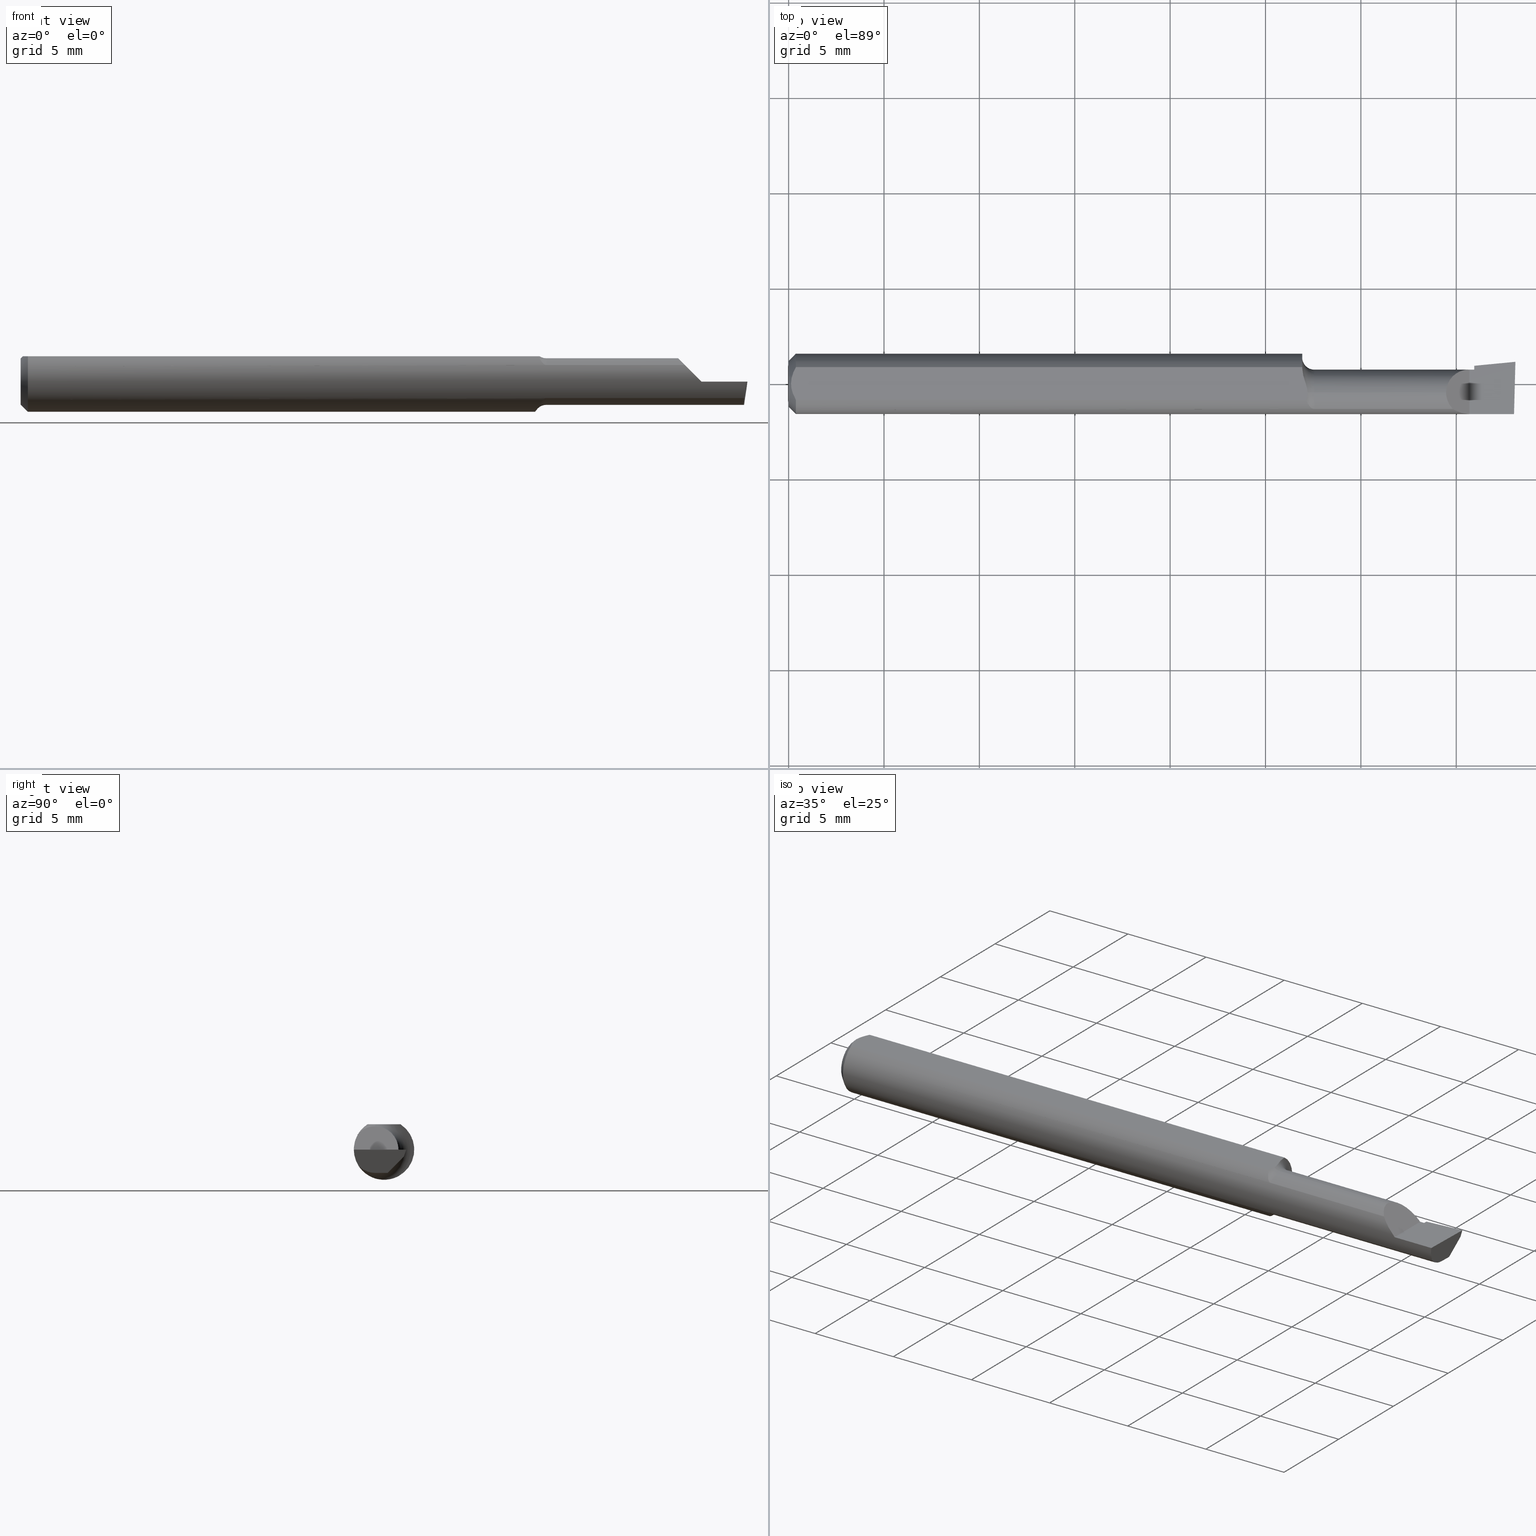
[diagram: canonical four-view strip — front | top / right | iso, engineering-drawing reading convention]
A machine part, canonical four-view strip (front | top / right | iso — engineering-drawing reading convention). The complete STEP part file that produces these views, byte-faithful:
ISO-10303-21;
HEADER;
FILE_DESCRIPTION (( 'STEP AP214' ),
    '1' );
FILE_NAME ('B110400.STEP',
    '2019-07-25T17:14:37',
    ( '' ),
    ( '' ),
    'SwSTEP 2.0',
    'SolidWorks 2018',
    '' );
FILE_SCHEMA (( 'AUTOMOTIVE_DESIGN' ));
ENDSEC;

DATA;
#1 = ORIENTED_EDGE ( 'NONE', *, *, #52, .F. ) ;
#2 = FACE_OUTER_BOUND ( 'NONE', #77, .T. ) ;
#3 = EDGE_CURVE ( 'NONE', #683, #197, #380, .T. ) ;
#4 = FILL_AREA_STYLE ('',( #547 ) ) ;
#5 = ORIENTED_EDGE ( 'NONE', *, *, #271, .T. ) ;
#6 =( NAMED_UNIT ( * ) SI_UNIT ( $, .STERADIAN. ) SOLID_ANGLE_UNIT ( ) );
#7 = CARTESIAN_POINT ( 'NONE',  ( 1.510364203804932526, 0.04234793331252790366, -0.01399999999999999856 ) ) ;
#8 = ORIENTED_EDGE ( 'NONE', *, *, #22, .T. ) ;
#9 = EDGE_CURVE ( 'NONE', #502, #662, #648, .T. ) ;
#10 = DIRECTION ( 'NONE',  ( -1.000000000000000000, -0.0000000000000000000, -0.0000000000000000000 ) ) ;
#11 = DIRECTION ( 'NONE',  ( -1.000000000000000000, 0.0000000000000000000, -0.0000000000000000000 ) ) ;
#12 = CIRCLE ( 'NONE', #675, 0.02500000000000000486 ) ;
#13 = CARTESIAN_POINT ( 'NONE',  ( 1.070168994702040521, -0.01001121285792181195, 0.05235000000000001458 ) ) ;
#14 = VECTOR ( 'NONE', #203, 39.37007874015748143 ) ;
#15 = ORIENTED_EDGE ( 'NONE', *, *, #163, .T. ) ;
#16 = ORIENTED_EDGE ( 'NONE', *, *, #526, .F. ) ;
#17 = EDGE_CURVE ( 'NONE', #39, #714, #247, .T. ) ;
#18 = PLANE ( 'NONE',  #703 ) ;
#19 = CARTESIAN_POINT ( 'NONE',  ( 1.070981797547136738, -0.01840000000000274055, 0.05235000000000000070 ) ) ;
#20 = CARTESIAN_POINT ( 'NONE',  ( 1.060000000000000275, 0.1123499999999999915, 0.05234999999999998682 ) ) ;
#21 = CARTESIAN_POINT ( 'NONE',  ( 0.01500000000000000465, 0.0000000000000000000, 0.0000000000000000000 ) ) ;
#22 = EDGE_CURVE ( 'NONE', #50, #696, #447, .T. ) ;
#23 = PRESENTATION_STYLE_ASSIGNMENT (( #491 ) ) ;
#24 = DIRECTION ( 'NONE',  ( 0.0000000000000000000, 1.000000000000000000, 0.0000000000000000000 ) ) ;
#25 = ORIENTED_EDGE ( 'NONE', *, *, #29, .T. ) ;
#26 = DIRECTION ( 'NONE',  ( 0.0000000000000000000, 0.0000000000000000000, -1.000000000000000000 ) ) ;
#27 = VERTEX_POINT ( 'NONE', #168 ) ;
#28 = VECTOR ( 'NONE', #249, 39.37007874015748854 ) ;
#29 = EDGE_CURVE ( 'NONE', #581, #601, #265, .T. ) ;
#30 = DIRECTION ( 'NONE',  ( -0.06894566448119622548, 0.7160281025913035613, -0.6946583704589933683 ) ) ;
#31 = ADVANCED_FACE ( 'NONE', ( #713 ), #286, .F. ) ;
#32 = PLANE ( 'NONE',  #560 ) ;
#33 = AXIS2_PLACEMENT_3D ( 'NONE', #615, #119, #57 ) ;
#34 = AXIS2_PLACEMENT_3D ( 'NONE', #579, #36, #189 ) ;
#35 = ORIENTED_EDGE ( 'NONE', *, *, #9, .F. ) ;
#36 = DIRECTION ( 'NONE',  ( -1.000000000000000000, -0.0000000000000000000, -0.0000000000000000000 ) ) ;
#37 = ORIENTED_EDGE ( 'NONE', *, *, #142, .F. ) ;
#38 = CARTESIAN_POINT ( 'NONE',  ( 1.062386060865227577, -0.01052139226165769992, -0.06200658662318050268 ) ) ;
#39 = VERTEX_POINT ( 'NONE', #439 ) ;
#40 = SURFACE_STYLE_FILL_AREA ( #309 ) ;
#41 = DIRECTION ( 'NONE',  ( 1.000000000000000000, 0.0000000000000000000, 0.0000000000000000000 ) ) ;
#42 = APPLICATION_CONTEXT ( 'automotive_design' ) ;
#43 = CARTESIAN_POINT ( 'NONE',  ( 1.500000000000000222, -0.2500000000000000555, 0.0000000000000000000 ) ) ;
#44 = LINE ( 'NONE', #7, #554 ) ;
#45 = AXIS2_PLACEMENT_3D ( 'NONE', #520, #587, #525 ) ;
#46 = CARTESIAN_POINT ( 'NONE',  ( 0.01500000000000000465, 0.03386738844375223462, 0.05234999999999997988 ) ) ;
#47 = ORIENTED_EDGE ( 'NONE', *, *, #669, .F. ) ;
#48 =( NAMED_UNIT ( * ) PLANE_ANGLE_UNIT ( ) SI_UNIT ( $, .RADIAN. ) );
#49 = LINE ( 'NONE', #634, #474 ) ;
#50 = VERTEX_POINT ( 'NONE', #338 ) ;
#51 = CARTESIAN_POINT ( 'NONE',  ( 1.067774730512700998, -0.03308328010062949742, -0.05299899880320897705 ) ) ;
#52 = EDGE_CURVE ( 'NONE', #27, #693, #44, .T. ) ;
#53 = ORIENTED_EDGE ( 'NONE', *, *, #536, .T. ) ;
#54 = CARTESIAN_POINT ( 'NONE',  ( 1.068925984400744600, -0.03134776909451144483, 0.05235000000000000070 ) ) ;
#55 = VECTOR ( 'NONE', #685, 39.37007874015748143 ) ;
#56 = AXIS2_PLACEMENT_3D ( 'NONE', #278, #378, #61 ) ;
#57 = DIRECTION ( 'NONE',  ( 0.0000000000000000000, 0.0000000000000000000, -1.000000000000000000 ) ) ;
#58 = ORIENTED_EDGE ( 'NONE', *, *, #224, .F. ) ;
#59 = VERTEX_POINT ( 'NONE', #179 ) ;
#60 = ORIENTED_EDGE ( 'NONE', *, *, #163, .F. ) ;
#61 = DIRECTION ( 'NONE',  ( 0.0000000000000000000, 0.0000000000000000000, -1.000000000000000000 ) ) ;
#62 = VERTEX_POINT ( 'NONE', #497 ) ;
#63 = CYLINDRICAL_SURFACE ( 'NONE', #524, 0.04804999999999998161 ) ;
#64 = DIRECTION ( 'NONE',  ( -0.0000000000000000000, 0.0000000000000000000, 1.000000000000000000 ) ) ;
#65 = CARTESIAN_POINT ( 'NONE',  ( 1.060000000000000275, 0.03254879782683783168, 0.05235000000000000070 ) ) ;
#66 = EDGE_CURVE ( 'NONE', #692, #151, #232, .T. ) ;
#67 = CARTESIAN_POINT ( 'NONE',  ( 1.060000000000000275, 0.03386738844375224156, 0.05235000000000000070 ) ) ;
#68 = DIRECTION ( 'NONE',  ( -0.0000000000000000000, 0.0000000000000000000, 1.000000000000000000 ) ) ;
#69 = FACE_OUTER_BOUND ( 'NONE', #420, .T. ) ;
#70 = AXIS2_PLACEMENT_3D ( 'NONE', #385, #118, #443 ) ;
#71 = CARTESIAN_POINT ( 'NONE',  ( 1.509953961983671489, 0.04660845752520201279, 0.0000000000000000000 ) ) ;
#72 = ORIENTED_EDGE ( 'NONE', *, *, #458, .T. ) ;
#73 = DIRECTION ( 'NONE',  ( 0.0000000000000000000, 1.000000000000000000, -7.598598113218357399E-17 ) ) ;
#74 =( BOUNDED_CURVE ( )  B_SPLINE_CURVE ( 3, ( #680, #553, #178, #448 ),
 .UNSPECIFIED., .F., .F. ) 
 B_SPLINE_CURVE_WITH_KNOTS ( ( 4, 4 ),
 ( 4.712388980384689674, 5.293951277779024522 ),
 .UNSPECIFIED. ) 
 CURVE ( )  GEOMETRIC_REPRESENTATION_ITEM ( )  RATIONAL_B_SPLINE_CURVE ( ( 1.000000000000000000, 0.9720134746468970244, 0.9720134746468970244, 1.000000000000000000 ) ) 
 REPRESENTATION_ITEM ( '' )  );
#75 = PLANE ( 'NONE',  #79 ) ;
#76 = CARTESIAN_POINT ( 'NONE',  ( 1.405000000000000249, 0.02964999999999991601, 1.163414459189982046E-17 ) ) ;
#77 = EDGE_LOOP ( 'NONE', ( #593, #253, #673, #427 ) ) ;
#78 = DIRECTION ( 'NONE',  ( 0.0000000000000000000, 0.0000000000000000000, -1.000000000000000000 ) ) ;
#79 = AXIS2_PLACEMENT_3D ( 'NONE', #453, #11, #68 ) ;
#80 = CARTESIAN_POINT ( 'NONE',  ( 1.493233423732482024, -0.05210000000000004211, -0.03425072991922938764 ) ) ;
#81 = ADVANCED_FACE ( 'NONE', ( #470 ), #676, .T. ) ;
#82 = DIRECTION ( 'NONE',  ( -1.000000000000000000, -0.0000000000000000000, -0.0000000000000000000 ) ) ;
#83 = CARTESIAN_POINT ( 'NONE',  ( 0.0000000000000000000, -0.01839999999999999969, 0.0000000000000000000 ) ) ;
#84 = AXIS2_PLACEMENT_3D ( 'NONE', #565, #238, #248 ) ;
#85 = DIRECTION ( 'NONE',  ( -0.7071067811865516806, 0.0000000000000000000, 0.7071067811865431318 ) ) ;
#86 = CARTESIAN_POINT ( 'NONE',  ( 0.01216137397042175820, -0.02864146636719541034, 0.05235000000000000070 ) ) ;
#87 = ORIENTED_EDGE ( 'NONE', *, *, #411, .T. ) ;
#88 = DIRECTION ( 'NONE',  ( 0.0000000000000000000, 0.0000000000000000000, 1.000000000000000000 ) ) ;
#89 = EDGE_CURVE ( 'NONE', #486, #416, #422, .T. ) ;
#90 = LINE ( 'NONE', #401, #209 ) ;
#91 = CARTESIAN_POINT ( 'NONE',  ( 1.060000000000000275, 0.03254879782683783168, 0.05235000000000000070 ) ) ;
#92 = ADVANCED_FACE ( 'NONE', ( #456 ), #75, .T. ) ;
#93 = CARTESIAN_POINT ( 'NONE',  ( 0.004999999999989931769, 7.898418181085889318E-16, 0.05235000000000000070 ) ) ;
#94 = PLANE ( 'NONE',  #45 ) ;
#95 = EDGE_CURVE ( 'NONE', #50, #392, #507, .T. ) ;
#96 = CIRCLE ( 'NONE', #329, 0.06235000000000000264 ) ;
#97 = CARTESIAN_POINT ( 'NONE',  ( 1.497171920470529161, -0.06235000000000005121, 3.552677088412731724E-19 ) ) ;
#98 = ORIENTED_EDGE ( 'NONE', *, *, #89, .F. ) ;
#99 = DIRECTION ( 'NONE',  ( -1.000000000000000000, 0.0000000000000000000, 1.224646799147350495E-16 ) ) ;
#100 = LINE ( 'NONE', #622, #572 ) ;
#101 = CARTESIAN_POINT ( 'NONE',  ( 1.085000000000000187, -0.01839999999999999969, 0.0000000000000000000 ) ) ;
#102 = DIRECTION ( 'NONE',  ( 0.0000000000000000000, -0.6963153109074924352, -0.7177360153954949196 ) ) ;
#103 = CARTESIAN_POINT ( 'NONE',  ( 1.492426164563412261, -0.01820167213927955871, -0.04804999999999998855 ) ) ;
#104 = CIRCLE ( 'NONE', #359, 0.04734999999999965625 ) ;
#105 = EDGE_CURVE ( 'NONE', #254, #486, #226, .T. ) ;
#106 = ORIENTED_EDGE ( 'NONE', *, *, #526, .T. ) ;
#107 = ORIENTED_EDGE ( 'NONE', *, *, #469, .T. ) ;
#108 = CARTESIAN_POINT ( 'NONE',  ( 1.069002343694370749, -0.03635371779854199015, -0.05080473676934862959 ) ) ;
#109 = CYLINDRICAL_SURFACE ( 'NONE', #141, 0.04804999999999998161 ) ;
#110 = VECTOR ( 'NONE', #336, 39.37007874015748143 ) ;
#111 = EDGE_LOOP ( 'NONE', ( #548, #227, #374, #382, #284, #1 ) ) ;
#112 = ORIENTED_EDGE ( 'NONE', *, *, #411, .F. ) ;
#113 = EDGE_LOOP ( 'NONE', ( #450, #53, #365, #8, #578 ) ) ;
#114 = ORIENTED_EDGE ( 'NONE', *, *, #562, .T. ) ;
#115 = DIRECTION ( 'NONE',  ( 0.0000000000000000000, -0.6963153109074924352, -0.7177360153954949196 ) ) ;
#116 = AXIS2_PLACEMENT_3D ( 'NONE', #43, #708, #99 ) ;
#117 = EDGE_CURVE ( 'NONE', #714, #62, #415, .T. ) ;
#118 = DIRECTION ( 'NONE',  ( 1.000000000000000000, 0.0000000000000000000, 0.0000000000000000000 ) ) ;
#119 = DIRECTION ( 'NONE',  ( 1.000000000000000000, 0.0000000000000000000, 0.0000000000000000000 ) ) ;
#120 = ORIENTED_EDGE ( 'NONE', *, *, #712, .T. ) ;
#121 = CARTESIAN_POINT ( 'NONE',  ( 1.066444485955765575, 0.002321921504987078423, 0.05235000000000000070 ) ) ;
#122 = ORIENTED_EDGE ( 'NONE', *, *, #132, .F. ) ;
#123 = CARTESIAN_POINT ( 'NONE',  ( 1.415000000000000036, -0.01839999999999999969, -0.04804999999999998855 ) ) ;
#124 = DIRECTION ( 'NONE',  ( 0.0000000000000000000, -1.000000000000000000, 7.598598113218357399E-17 ) ) ;
#125 = LINE ( 'NONE', #123, #55 ) ;
#126 = EDGE_CURVE ( 'NONE', #345, #283, #317, .T. ) ;
#127 = CARTESIAN_POINT ( 'NONE',  ( 1.068472688040297269, -0.003926822060867487217, 0.05235000000000000070 ) ) ;
#128 = LINE ( 'NONE', #435, #379 ) ;
#129 = DIRECTION ( 'NONE',  ( 0.0000000000000000000, 0.0000000000000000000, 1.000000000000000000 ) ) ;
#130 = ORIENTED_EDGE ( 'NONE', *, *, #476, .T. ) ;
#131 = DIRECTION ( 'NONE',  ( 1.000000000000000000, 0.0000000000000000000, 0.0000000000000000000 ) ) ;
#132 = EDGE_CURVE ( 'NONE', #187, #301, #371, .T. ) ;
#133 = VECTOR ( 'NONE', #124, 39.37007874015748143 ) ;
#134 = ADVANCED_FACE ( 'NONE', ( #609 ), #139, .F. ) ;
#135 = AXIS2_PLACEMENT_3D ( 'NONE', #191, #82, #569 ) ;
#136 = CARTESIAN_POINT ( 'NONE',  ( 1.492371467082626024, -0.04299473640227066684, -0.04320958667840190531 ) ) ;
#137 = CARTESIAN_POINT ( 'NONE',  ( 1.492263437268387616, -0.2497974109750948912, 9.474556785672067455E-19 ) ) ;
#138 = EDGE_LOOP ( 'NONE', ( #348, #332, #155, #511, #296, #472, #15, #383, #626, #522, #558, #321, #326 ) ) ;
#139 = PLANE ( 'NONE',  #192 ) ;
#140 = SHAPE_DEFINITION_REPRESENTATION ( #586, #412 ) ;
#141 = AXIS2_PLACEMENT_3D ( 'NONE', #337, #229, #627 ) ;
#142 = EDGE_CURVE ( 'NONE', #416, #662, #279, .T. ) ;
#143 = ADVANCED_FACE ( 'NONE', ( #389 ), #576, .T. ) ;
#144 = DIRECTION ( 'NONE',  ( -0.9922060308645477278, 0.02598182930469643617, 0.1218693434051484198 ) ) ;
#145 = FACE_OUTER_BOUND ( 'NONE', #400, .T. ) ;
#146 = CARTESIAN_POINT ( 'NONE',  ( 1.076602410087811545, -0.04843664215652594002, 0.03931692004732156159 ) ) ;
#147 = ORIENTED_EDGE ( 'NONE', *, *, #513, .T. ) ;
#148 = EDGE_LOOP ( 'NONE', ( #215, #107, #681 ) ) ;
#149 = CARTESIAN_POINT ( 'NONE',  ( 1.071579710012544595, -0.04200879032723220385, 0.04631940421101472111 ) ) ;
#150 = SURFACE_STYLE_FILL_AREA ( #4 ) ;
#151 = VERTEX_POINT ( 'NONE', #686 ) ;
#152 =( CONVERSION_BASED_UNIT ( 'INCH', #266 ) LENGTH_UNIT ( ) NAMED_UNIT ( #202 ) );
#153 = CARTESIAN_POINT ( 'NONE',  ( 1.070981797547136738, -0.01840000000000274055, 0.05235000000000000070 ) ) ;
#154 = ORIENTED_EDGE ( 'NONE', *, *, #271, .F. ) ;
#155 = ORIENTED_EDGE ( 'NONE', *, *, #384, .T. ) ;
#156 = AXIS2_PLACEMENT_3D ( 'NONE', #656, #588, #702 ) ;
#157 = VECTOR ( 'NONE', #342, 39.37007874015748854 ) ;
#158 = PRODUCT_DEFINITION_CONTEXT ( 'detailed design', #417, 'design' ) ;
#159 = LINE ( 'NONE', #695, #647 ) ;
#160 = ORIENTED_EDGE ( 'NONE', *, *, #315, .T. ) ;
#161 = ORIENTED_EDGE ( 'NONE', *, *, #712, .F. ) ;
#162 = AXIS2_PLACEMENT_3D ( 'NONE', #406, #457, #630 ) ;
#163 = EDGE_CURVE ( 'NONE', #466, #187, #159, .T. ) ;
#164 = DIRECTION ( 'NONE',  ( -1.000000000000000000, -0.0000000000000000000, -0.0000000000000000000 ) ) ;
#165 = B_SPLINE_CURVE_WITH_KNOTS ( 'NONE', 3,
 ( #527, #704, #149, #255, #146, #361, #421, #653, #517, #370 ),
 .UNSPECIFIED., .F., .F.,
 ( 4, 2, 2, 2, 4 ),
 ( 3.799952872694191753E-07, 0.0004056523638566329184, 0.0006082885481413145791, 0.0007096066402836554094, 0.0008109247324259961313 ),
 .UNSPECIFIED. ) ;
#166 = UNCERTAINTY_MEASURE_WITH_UNIT (LENGTH_MEASURE( 1.000000000000000082E-05 ), #173, 'distance_accuracy_value', 'NONE');
#167 = CARTESIAN_POINT ( 'NONE',  ( 1.060000000000000275, 0.0000000000000000000, 0.0000000000000000000 ) ) ;
#168 = CARTESIAN_POINT ( 'NONE',  ( 1.498163195397632430, 0.04117310982593898327, -0.01399999999999999856 ) ) ;
#169 =( GEOMETRIC_REPRESENTATION_CONTEXT ( 3 ) GLOBAL_UNCERTAINTY_ASSIGNED_CONTEXT ( ( #319 ) ) GLOBAL_UNIT_ASSIGNED_CONTEXT ( ( #152, #48, #523 ) ) REPRESENTATION_CONTEXT ( 'NONE', 'WORKASPACE' ) );
#170 = CIRCLE ( 'NONE', #373, 0.04804999999999996080 ) ;
#171 = ORIENTED_EDGE ( 'NONE', *, *, #532, .T. ) ;
#172 = DIRECTION ( 'NONE',  ( 1.000000000000000000, 0.0000000000000000000, 0.0000000000000000000 ) ) ;
#173 =( CONVERSION_BASED_UNIT ( 'INCH', #369 ) LENGTH_UNIT ( ) NAMED_UNIT ( #252 ) );
#174 = DIRECTION ( 'NONE',  ( -1.000000000000000000, -0.0000000000000000000, -0.0000000000000000000 ) ) ;
#175 = CARTESIAN_POINT ( 'NONE',  ( 1.085000000000000187, -0.01839999999999999275, -0.07304999999999996219 ) ) ;
#176 = FACE_OUTER_BOUND ( 'NONE', #113, .T. ) ;
#177 = DIRECTION ( 'NONE',  ( -0.9953961983671800740, -0.09584575252021031166, 0.0000000000000000000 ) ) ;
#178 = CARTESIAN_POINT ( 'NONE',  ( 1.380994055934046782, -0.05883495956508445063, 0.02400594406595332048 ) ) ;
#179 = CARTESIAN_POINT ( 'NONE',  ( 1.415000000000000036, 0.02964999999999999233, 1.836970198721026236E-16 ) ) ;
#180 = DIRECTION ( 'NONE',  ( 0.0000000000000000000, -7.598598113218357399E-17, -1.000000000000000000 ) ) ;
#181 = DIRECTION ( 'NONE',  ( -1.000000000000000000, -0.0000000000000000000, -0.0000000000000000000 ) ) ;
#182 = VECTOR ( 'NONE', #131, 39.37007874015748143 ) ;
#183 = DIRECTION ( 'NONE',  ( 0.9953961983671787417, 0.09584575252022461966, -1.219008768213806398E-16 ) ) ;
#184 = AXIS2_PLACEMENT_3D ( 'NONE', #167, #172, #670 ) ;
#185 = DIRECTION ( 'NONE',  ( -1.000000000000000000, -0.0000000000000000000, -0.0000000000000000000 ) ) ;
#186 = ORIENTED_EDGE ( 'NONE', *, *, #117, .F. ) ;
#187 = VERTEX_POINT ( 'NONE', #193 ) ;
#188 = VERTEX_POINT ( 'NONE', #454 ) ;
#189 = DIRECTION ( 'NONE',  ( 0.0000000000000000000, 0.0000000000000000000, 1.000000000000000000 ) ) ;
#190 = CARTESIAN_POINT ( 'NONE',  ( 1.356949999999999878, -0.01839999999999999969, 0.04804999999999998161 ) ) ;
#191 = CARTESIAN_POINT ( 'NONE',  ( 1.085000000000000187, -0.01839999999999999969, 0.0000000000000000000 ) ) ;
#192 = AXIS2_PLACEMENT_3D ( 'NONE', #461, #573, #239 ) ;
#193 = CARTESIAN_POINT ( 'NONE',  ( 0.01500000000000185039, -0.03386738844380016850, 0.05235000000000000070 ) ) ;
#194 = CARTESIAN_POINT ( 'NONE',  ( 1.415000000000000036, 0.007456147106387301521, -0.04050015008383126003 ) ) ;
#195 = LINE ( 'NONE', #538, #204 ) ;
#196 = DIRECTION ( 'NONE',  ( 0.1219104985252838363, 0.0000000000000000000, 0.9925410975618675913 ) ) ;
#197 = VERTEX_POINT ( 'NONE', #570 ) ;
#198 = ADVANCED_FACE ( 'NONE', ( #176 ), #635, .T. ) ;
#199 = DIRECTION ( 'NONE',  ( -1.000000000000000000, -0.0000000000000000000, -0.0000000000000000000 ) ) ;
#200 = DIRECTION ( 'NONE',  ( 0.0000000000000000000, 0.0000000000000000000, 1.000000000000000000 ) ) ;
#201 = AXIS2_PLACEMENT_3D ( 'NONE', #287, #499, #129 ) ;
#202 = DIMENSIONAL_EXPONENTS ( 1.000000000000000000, 0.0000000000000000000, 0.0000000000000000000, 0.0000000000000000000, 0.0000000000000000000, 0.0000000000000000000, 0.0000000000000000000 ) ;
#203 = DIRECTION ( 'NONE',  ( -1.000000000000000000, -0.0000000000000000000, -0.0000000000000000000 ) ) ;
#204 = VECTOR ( 'NONE', #164, 39.37007874015748143 ) ;
#205 = CARTESIAN_POINT ( 'NONE',  ( 1.060000000000000275, 0.03016902173913028548, -0.05456512281030699574 ) ) ;
#206 = VECTOR ( 'NONE', #544, 39.37007874015748143 ) ;
#207 = ORIENTED_EDGE ( 'NONE', *, *, #281, .T. ) ;
#208 = CARTESIAN_POINT ( 'NONE',  ( 0.004999999999999268051, 0.005945714695019511074, 0.05235000000000000070 ) ) ;
#209 = VECTOR ( 'NONE', #181, 39.37007874015748143 ) ;
#210 = DIRECTION ( 'NONE',  ( -0.02617694830787629587, -0.9996573249755572599, 4.246274422243600449E-17 ) ) ;
#211 = PRODUCT_CONTEXT ( 'NONE', #42, 'mechanical' ) ;
#212 = DIRECTION ( 'NONE',  ( 0.1053106618241842624, 0.6976485211320169189, 0.7086580314005210823 ) ) ;
#213 = PRODUCT ( 'B110400', 'B110400', '', ( #211 ) ) ;
#214 = LINE ( 'NONE', #310, #220 ) ;
#215 = ORIENTED_EDGE ( 'NONE', *, *, #351, .T. ) ;
#216 = CARTESIAN_POINT ( 'NONE',  ( 1.063943527499067399, -0.01839999999999995459, -0.05957316929625283003 ) ) ;
#217 = PRODUCT_DEFINITION ( 'UNKNOWN', '', #262, #158 ) ;
#218 = VECTOR ( 'NONE', #24, 39.37007874015748143 ) ;
#219 = CARTESIAN_POINT ( 'NONE',  ( 1.064710485888420877, -0.02227973916747847880, -0.05837485801745210395 ) ) ;
#220 = VECTOR ( 'NONE', #212, 39.37007874015748854 ) ;
#221 = ORIENTED_EDGE ( 'NONE', *, *, #29, .F. ) ;
#222 = VERTEX_POINT ( 'NONE', #344 ) ;
#223 = FACE_OUTER_BOUND ( 'NONE', #672, .T. ) ;
#224 = EDGE_CURVE ( 'NONE', #39, #692, #330, .T. ) ;
#225 = CARTESIAN_POINT ( 'NONE',  ( 1.370749270080770632, -0.05210000000000018783, 0.03425072991922922805 ) ) ;
#226 = LINE ( 'NONE', #391, #182 ) ;
#227 = ORIENTED_EDGE ( 'NONE', *, *, #669, .T. ) ;
#228 = CARTESIAN_POINT ( 'NONE',  ( 1.067828966321618278, -0.001899322570691681575, 0.05235000000000000070 ) ) ;
#229 = DIRECTION ( 'NONE',  ( -1.000000000000000000, -0.0000000000000000000, -0.0000000000000000000 ) ) ;
#230 = DIRECTION ( 'NONE',  ( -0.0000000000000000000, 1.000000000000000000, 1.224646799147353207E-16 ) ) ;
#231 = CARTESIAN_POINT ( 'NONE',  ( 1.415000000000000036, 0.03746543090320910568, 0.0000000000000000000 ) ) ;
#232 = LINE ( 'NONE', #671, #110 ) ;
#233 = AXIS2_PLACEMENT_3D ( 'NONE', #394, #199, #409 ) ;
#234 = VECTOR ( 'NONE', #115, 39.37007874015748143 ) ;
#235 = CARTESIAN_POINT ( 'NONE',  ( 1.085000000000000187, -0.01839999999999999969, 0.0000000000000000000 ) ) ;
#236 = VERTEX_POINT ( 'NONE', #305 ) ;
#237 = CARTESIAN_POINT ( 'NONE',  ( 0.0000000000000000000, 0.0000000000000000000, 0.0000000000000000000 ) ) ;
#238 = DIRECTION ( 'NONE',  ( -1.000000000000000000, -0.0000000000000000000, -0.0000000000000000000 ) ) ;
#239 = DIRECTION ( 'NONE',  ( 0.0000000000000000000, -1.000000000000000000, 4.268512490100411895E-17 ) ) ;
#240 = CARTESIAN_POINT ( 'NONE',  ( 1.063943527499067399, -0.01839999999999995459, -0.05957316929625283003 ) ) ;
#241 = VECTOR ( 'NONE', #41, 39.37007874015748143 ) ;
#242 = DIRECTION ( 'NONE',  ( 0.0000000000000000000, 0.0000000000000000000, 1.000000000000000000 ) ) ;
#243 = ORIENTED_EDGE ( 'NONE', *, *, #442, .F. ) ;
#244 = ORIENTED_EDGE ( 'NONE', *, *, #532, .F. ) ;
#245 = EDGE_CURVE ( 'NONE', #674, #638, #595, .T. ) ;
#246 = VECTOR ( 'NONE', #556, 39.37007874015748143 ) ;
#247 =( BOUNDED_CURVE ( )  B_SPLINE_CURVE ( 3, ( #388, #611, #436, #542 ),
 .UNSPECIFIED., .F., .T. ) 
 B_SPLINE_CURVE_WITH_KNOTS ( ( 4, 4 ),
 ( 0.7791845851203693663, 1.360746882514708211 ),
 .UNSPECIFIED. ) 
 CURVE ( )  GEOMETRIC_REPRESENTATION_ITEM ( )  RATIONAL_B_SPLINE_CURVE ( ( 1.000000000000000000, 0.9720134746468966913, 0.9720134746468966913, 1.000000000000000000 ) ) 
 REPRESENTATION_ITEM ( '' )  );
#248 = DIRECTION ( 'NONE',  ( 0.0000000000000000000, 0.0000000000000000000, 1.000000000000000000 ) ) ;
#249 = DIRECTION ( 'NONE',  ( -0.9953961983671800740, -0.09584575252021028391, 2.116984158397002497E-18 ) ) ;
#250 = CARTESIAN_POINT ( 'NONE',  ( 0.01218518006020415795, 0.02868529347538067639, 0.05235000000000000070 ) ) ;
#251 = LINE ( 'NONE', #257, #241 ) ;
#252 = DIMENSIONAL_EXPONENTS ( 1.000000000000000000, 0.0000000000000000000, 0.0000000000000000000, 0.0000000000000000000, 0.0000000000000000000, 0.0000000000000000000, 0.0000000000000000000 ) ;
#253 = ORIENTED_EDGE ( 'NONE', *, *, #274, .T. ) ;
#254 = VERTEX_POINT ( 'NONE', #646 ) ;
#255 = CARTESIAN_POINT ( 'NONE',  ( 1.075232443815719474, -0.04692169178955599151, 0.04112849538229054747 ) ) ;
#256 = LENGTH_MEASURE_WITH_UNIT ( LENGTH_MEASURE( 0.02539999999999999897 ), #423 );
#257 = CARTESIAN_POINT ( 'NONE',  ( 2.249639673992775738E-32, 0.02964999999999997499, 1.836970198721025250E-16 ) ) ;
#258 = CARTESIAN_POINT ( 'NONE',  ( 1.060000000000000275, 0.02282614954852003886, -0.05862499217990971290 ) ) ;
#259 = EDGE_CURVE ( 'NONE', #466, #254, #165, .T. ) ;
#260 = EDGE_LOOP ( 'NONE', ( #706, #366 ) ) ;
#261 = AXIS2_PLACEMENT_3D ( 'NONE', #231, #682, #617 ) ;
#262 = PRODUCT_DEFINITION_FORMATION_WITH_SPECIFIED_SOURCE ( 'ANY', '', #213, .NOT_KNOWN. ) ;
#263 =( NAMED_UNIT ( * ) PLANE_ANGLE_UNIT ( ) SI_UNIT ( $, .RADIAN. ) );
#264 = ORIENTED_EDGE ( 'NONE', *, *, #469, .F. ) ;
#265 = B_SPLINE_CURVE_WITH_KNOTS ( 'NONE', 3,
 ( #65, #557, #549, #334, #121, #228, #127, #13, #446, #19 ),
 .UNSPECIFIED., .F., .F.,
 ( 4, 2, 2, 2, 4 ),
 ( 0.008710904206567223612, 0.009350419755586170459, 0.009510298642840907604, 0.009670177530095643015, 0.009989935304605117306 ),
 .UNSPECIFIED. ) ;
#266 = LENGTH_MEASURE_WITH_UNIT ( LENGTH_MEASURE( 0.02539999999999999897 ), #518 );
#267 = CARTESIAN_POINT ( 'NONE',  ( 0.0000000000000000000, 6.717187693324806899E-18, 0.04734999999999965625 ) ) ;
#268 = VECTOR ( 'NONE', #299, 39.37007874015748143 ) ;
#269 = APPLICATION_PROTOCOL_DEFINITION ( 'draft international standard', 'automotive_design', 1998, #417 ) ;
#270 = ORIENTED_EDGE ( 'NONE', *, *, #126, .T. ) ;
#271 = EDGE_CURVE ( 'NONE', #283, #345, #104, .T. ) ;
#272 = LINE ( 'NONE', #20, #133 ) ;
#273 = CARTESIAN_POINT ( 'NONE',  ( 1.493103169438388278, 0.007652100972630301173, -0.04804999999999998855 ) ) ;
#274 = EDGE_CURVE ( 'NONE', #416, #188, #600, .T. ) ;
#275 = DIRECTION ( 'NONE',  ( -1.000000000000000000, -0.0000000000000000000, -0.0000000000000000000 ) ) ;
#276 = ORIENTED_EDGE ( 'NONE', *, *, #425, .F. ) ;
#277 = VECTOR ( 'NONE', #210, 39.37007874015748143 ) ;
#278 = CARTESIAN_POINT ( 'NONE',  ( 0.01500000000000000465, 0.0000000000000000000, 0.0000000000000000000 ) ) ;
#279 =( BOUNDED_CURVE ( )  B_SPLINE_CURVE ( 3, ( #190, #631, #355, #76 ),
 .UNSPECIFIED., .F., .F. ) 
 B_SPLINE_CURVE_WITH_KNOTS ( ( 4, 4 ),
 ( 0.0000000000000000000, 1.570796326794896558 ),
 .UNSPECIFIED. ) 
 CURVE ( )  GEOMETRIC_REPRESENTATION_ITEM ( )  RATIONAL_B_SPLINE_CURVE ( ( 1.000000000000000000, 0.8047378541243649375, 0.8047378541243649375, 1.000000000000000000 ) ) 
 REPRESENTATION_ITEM ( '' )  );
#280 = AXIS2_PLACEMENT_3D ( 'NONE', #21, #350, #26 ) ;
#281 = EDGE_CURVE ( 'NONE', #662, #59, #251, .T. ) ;
#282 = CIRCLE ( 'NONE', #184, 0.06235000000000000264 ) ;
#283 = VERTEX_POINT ( 'NONE', #650 ) ;
#284 = ORIENTED_EDGE ( 'NONE', *, *, #691, .F. ) ;
#285 = CYLINDRICAL_SURFACE ( 'NONE', #233, 0.04804999999999998161 ) ;
#286 = PLANE ( 'NONE',  #261 ) ;
#287 = CARTESIAN_POINT ( 'NONE',  ( 1.415000000000000036, -0.01839999999999999969, 0.0000000000000000000 ) ) ;
#288 = ADVANCED_FACE ( 'NONE', ( #372 ), #353, .F. ) ;
#289 = CARTESIAN_POINT ( 'NONE',  ( 0.01500000000000185039, -0.03386738844380016850, 0.05235000000000000070 ) ) ;
#290 = CARTESIAN_POINT ( 'NONE',  ( 0.01500000000000000465, 7.635672792683746671E-18, 0.06235000000000000264 ) ) ;
#291 = ORIENTED_EDGE ( 'NONE', *, *, #66, .F. ) ;
#292 = EDGE_CURVE ( 'NONE', #301, #50, #477, .T. ) ;
#293 = CARTESIAN_POINT ( 'NONE',  ( 1.415000000000000036, 0.03746543090321039632, 1.856802933193678953E-16 ) ) ;
#294 = ORIENTED_EDGE ( 'NONE', *, *, #699, .T. ) ;
#295 = DIRECTION ( 'NONE',  ( -1.000000000000000000, -0.0000000000000000000, -0.0000000000000000000 ) ) ;
#296 = ORIENTED_EDGE ( 'NONE', *, *, #105, .F. ) ;
#297 = CARTESIAN_POINT ( 'NONE',  ( 1.497451155291631864, 0.008070764392015433372, -0.04804999999999998855 ) ) ;
#298 = LINE ( 'NONE', #335, #157 ) ;
#299 = DIRECTION ( 'NONE',  ( 0.02617694830787629934, 0.9996573249755572599, -3.158139334224184651E-18 ) ) ;
#300 = DIRECTION ( 'NONE',  ( -1.000000000000000000, -0.0000000000000000000, -0.0000000000000000000 ) ) ;
#301 = VERTEX_POINT ( 'NONE', #585 ) ;
#302 = ADVANCED_FACE ( 'NONE', ( #657 ), #94, .T. ) ;
#303 = CARTESIAN_POINT ( 'NONE',  ( 1.415000000000000036, -0.2500000000000000555, 1.040949779275248537E-17 ) ) ;
#304 = ADVANCED_FACE ( 'NONE', ( #331 ), #308, .F. ) ;
#305 = CARTESIAN_POINT ( 'NONE',  ( 1.415000000000000036, 0.02286474879319034398, -0.02461753454420028894 ) ) ;
#306 = CIRCLE ( 'NONE', #162, 0.04804999999999996080 ) ;
#307 = AXIS2_PLACEMENT_3D ( 'NONE', #356, #354, #85 ) ;
#308 = PLANE ( 'NONE',  #116 ) ;
#309 = FILL_AREA_STYLE ('',( #592 ) ) ;
#310 = CARTESIAN_POINT ( 'NONE',  ( 1.498384822753112910, 0.04264131821163488767, -0.01250862198832625692 ) ) ;
#311 = COLOUR_RGB ( '',0.7529411764705882248, 0.7529411764705882248, 0.7529411764705882248 ) ;
#312 = ORIENTED_EDGE ( 'NONE', *, *, #393, .T. ) ;
#313 = PRESENTATION_STYLE_ASSIGNMENT (( #367 ) ) ;
#314 = CARTESIAN_POINT ( 'NONE',  ( 1.068143989668697280, -0.03386738844377056717, 0.05235000000000000070 ) ) ;
#315 = EDGE_CURVE ( 'NONE', #222, #674, #433, .T. ) ;
#316 = CARTESIAN_POINT ( 'NONE',  ( 1.070981797547469139, -0.02106709414031692970, 0.05235000000000000070 ) ) ;
#317 = CIRCLE ( 'NONE', #444, 0.04734999999999965625 ) ;
#318 = ORIENTED_EDGE ( 'NONE', *, *, #95, .F. ) ;
#319 = UNCERTAINTY_MEASURE_WITH_UNIT (LENGTH_MEASURE( 1.000000000000000082E-05 ), #152, 'distance_accuracy_value', 'NONE');
#320 = EDGE_CURVE ( 'NONE', #601, #466, #584, .T. ) ;
#321 = ORIENTED_EDGE ( 'NONE', *, *, #245, .F. ) ;
#322 = FACE_OUTER_BOUND ( 'NONE', #649, .T. ) ;
#323 = LINE ( 'NONE', #290, #698 ) ;
#324 = DIRECTION ( 'NONE',  ( 0.0000000000000000000, 0.0000000000000000000, 1.000000000000000000 ) ) ;
#325 = ORIENTED_EDGE ( 'NONE', *, *, #66, .T. ) ;
#326 = ORIENTED_EDGE ( 'NONE', *, *, #315, .F. ) ;
#327 = EDGE_CURVE ( 'NONE', #430, #27, #214, .T. ) ;
#328 = CARTESIAN_POINT ( 'NONE',  ( 1.415000000000000036, 0.03746543090320910568, 0.0000000000000000000 ) ) ;
#329 = AXIS2_PLACEMENT_3D ( 'NONE', #608, #10, #324 ) ;
#330 =( BOUNDED_CURVE ( )  B_SPLINE_CURVE ( 3, ( #80, #136, #690, #407 ),
 .UNSPECIFIED., .F., .T. ) 
 B_SPLINE_CURVE_WITH_KNOTS ( ( 4, 4 ),
 ( 5.715941252449187715, 6.493234751459775467 ),
 .UNSPECIFIED. ) 
 CURVE ( )  GEOMETRIC_REPRESENTATION_ITEM ( )  RATIONAL_B_SPLINE_CURVE ( ( 1.000000000000000000, 0.9502818019828908058, 0.9502818019828908058, 1.000000000000000000 ) ) 
 REPRESENTATION_ITEM ( '' )  );
#331 = FACE_OUTER_BOUND ( 'NONE', #441, .T. ) ;
#332 = ORIENTED_EDGE ( 'NONE', *, *, #17, .T. ) ;
#333 = DIRECTION ( 'NONE',  ( -1.000000000000000000, -0.0000000000000000000, -0.0000000000000000000 ) ) ;
#334 = CARTESIAN_POINT ( 'NONE',  ( 1.065733277589589356, 0.004426912553965577264, 0.05234999999999998682 ) ) ;
#335 = CARTESIAN_POINT ( 'NONE',  ( 1.500188977433813520, 0.04611059946466812554, 0.001440373173037451339 ) ) ;
#336 = DIRECTION ( 'NONE',  ( -1.000000000000000000, 5.691349986800549142E-18, -0.0000000000000000000 ) ) ;
#337 = CARTESIAN_POINT ( 'NONE',  ( 0.0000000000000000000, -0.01839999999999999969, 0.0000000000000000000 ) ) ;
#338 = CARTESIAN_POINT ( 'NONE',  ( 0.01500000000000000465, 0.03386738844375223462, 0.05234999999999997988 ) ) ;
#339 = EDGE_CURVE ( 'NONE', #236, #683, #519, .T. ) ;
#340 = CIRCLE ( 'NONE', #381, 0.04805000000000000243 ) ;
#341 = ADVANCED_FACE ( 'NONE', ( #480 ), #431, .F. ) ;
#342 = DIRECTION ( 'NONE',  ( 0.1240019227989365563, 0.3022330132596648955, 0.9451342385281308323 ) ) ;
#343 = EDGE_LOOP ( 'NONE', ( #47, #120, #325, #707 ) ) ;
#344 = CARTESIAN_POINT ( 'NONE',  ( 1.085000000000000187, -0.05210000000000013926, -0.03425072991922926968 ) ) ;
#345 = VERTEX_POINT ( 'NONE', #267 ) ;
#346 = ADVANCED_FACE ( 'NONE', ( #145 ), #679, .T. ) ;
#347 = EDGE_LOOP ( 'NONE', ( #160, #529, #419 ) ) ;
#348 = ORIENTED_EDGE ( 'NONE', *, *, #476, .F. ) ;
#349 = CARTESIAN_POINT ( 'NONE',  ( 1.415000000000000036, 0.03316540489603619218, -0.01400000000000000203 ) ) ;
#350 = DIRECTION ( 'NONE',  ( 1.000000000000000000, 0.0000000000000000000, 0.0000000000000000000 ) ) ;
#351 = EDGE_CURVE ( 'NONE', #638, #392, #282, .T. ) ;
#352 = DIRECTION ( 'NONE',  ( 0.0000000000000000000, 0.0000000000000000000, 1.000000000000000000 ) ) ;
#353 = TOROIDAL_SURFACE ( 'NONE', #550, 0.07304999999999996219, 0.02500000000000000486 ) ;
#354 = DIRECTION ( 'NONE',  ( -0.7071067811865432429, 0.0000000000000000000, -0.7071067811865517916 ) ) ;
#355 = CARTESIAN_POINT ( 'NONE',  ( 1.376852961672026865, 0.02964999999999998540, 0.02814703832797277663 ) ) ;
#356 = CARTESIAN_POINT ( 'NONE',  ( 1.405000000000000249, -0.2500000000000000555, 1.163414459189982046E-17 ) ) ;
#357 = FACE_OUTER_BOUND ( 'NONE', #432, .T. ) ;
#358 = ADVANCED_FACE ( 'NONE', ( #69 ), #387, .T. ) ;
#359 = AXIS2_PLACEMENT_3D ( 'NONE', #424, #413, #200 ) ;
#360 = EDGE_CURVE ( 'NONE', #590, #693, #128, .T. ) ;
#361 = CARTESIAN_POINT ( 'NONE',  ( 1.079178979635574631, -0.05033758282015991792, 0.03680695256572113355 ) ) ;
#362 = AXIS2_PLACEMENT_3D ( 'NONE', #514, #144, #196 ) ;
#363 =( NAMED_UNIT ( * ) SI_UNIT ( $, .STERADIAN. ) SOLID_ANGLE_UNIT ( ) );
#364 = CARTESIAN_POINT ( 'NONE',  ( 0.006064493299689842180, 0.01189382783781397189, 0.05235000000000000070 ) ) ;
#365 = ORIENTED_EDGE ( 'NONE', *, *, #292, .T. ) ;
#366 = ORIENTED_EDGE ( 'NONE', *, *, #339, .T. ) ;
#367 = SURFACE_STYLE_USAGE ( .BOTH. , #709 ) ;
#368 = ORIENTED_EDGE ( 'NONE', *, *, #320, .F. ) ;
#369 = LENGTH_MEASURE_WITH_UNIT ( LENGTH_MEASURE( 0.02539999999999999897 ), #543 );
#370 = CARTESIAN_POINT ( 'NONE',  ( 1.085000000000000187, -0.05210000000000012538, 0.03425072991922926968 ) ) ;
#371 = B_SPLINE_CURVE_WITH_KNOTS ( 'NONE', 3,
 ( #289, #86, #410, #561, #564, #463 ),
 .UNSPECIFIED., .F., .F.,
 ( 4, 2, 4 ),
 ( 0.002133667072902290657, 0.002585433046183636171, 0.003037199019464981685 ),
 .UNSPECIFIED. ) ;
#372 = FACE_OUTER_BOUND ( 'NONE', #375, .T. ) ;
#373 = AXIS2_PLACEMENT_3D ( 'NONE', #612, #275, #666 ) ;
#374 = ORIENTED_EDGE ( 'NONE', *, *, #3, .F. ) ;
#375 = EDGE_LOOP ( 'NONE', ( #530, #485, #521, #25, #147, #567 ) ) ;
#376 = CARTESIAN_POINT ( 'NONE',  ( 1.076855754336165871, -0.04856891343705593833, -0.03913748562448255558 ) ) ;
#377 = CARTESIAN_POINT ( 'NONE',  ( 1.065629458297511656, -0.02606820000987079139, -0.05677892429946720249 ) ) ;
#378 = DIRECTION ( 'NONE',  ( 1.000000000000000000, 0.0000000000000000000, 0.0000000000000000000 ) ) ;
#379 = VECTOR ( 'NONE', #606, 39.37007874015748143 ) ;
#380 = LINE ( 'NONE', #661, #234 ) ;
#381 = AXIS2_PLACEMENT_3D ( 'NONE', #434, #437, #484 ) ;
#382 = ORIENTED_EDGE ( 'NONE', *, *, #339, .F. ) ;
#383 = ORIENTED_EDGE ( 'NONE', *, *, #393, .F. ) ;
#384 = EDGE_CURVE ( 'NONE', #714, #502, #195, .T. ) ;
#385 = CARTESIAN_POINT ( 'NONE',  ( 1.415000000000000036, -0.01839999999999999969, 0.0000000000000000000 ) ) ;
#386 = EDGE_LOOP ( 'NONE', ( #705, #471, #440, #114 ) ) ;
#387 = PLANE ( 'NONE',  #496 ) ;
#388 = CARTESIAN_POINT ( 'NONE',  ( 1.493233423732482024, -0.05210000000000004211, -0.03425072991922938764 ) ) ;
#389 = FACE_OUTER_BOUND ( 'NONE', #138, .T. ) ;
#390 = ORIENTED_EDGE ( 'NONE', *, *, #274, .F. ) ;
#391 = CARTESIAN_POINT ( 'NONE',  ( 1.250000000000000000, -0.05210000000000004211, 0.03425072991922938764 ) ) ;
#392 = VERTEX_POINT ( 'NONE', #67 ) ;
#393 = EDGE_CURVE ( 'NONE', #696, #187, #96, .T. ) ;
#394 = CARTESIAN_POINT ( 'NONE',  ( 0.0000000000000000000, -0.01839999999999999969, 0.0000000000000000000 ) ) ;
#395 = CIRCLE ( 'NONE', #620, 0.04804999999999996080 ) ;
#396 = CARTESIAN_POINT ( 'NONE',  ( 0.01500000000000000465, 0.0000000000000000000, -0.06235000000000000264 ) ) ;
#397 = AXIS2_PLACEMENT_3D ( 'NONE', #71, #402, #621 ) ;
#398 = CARTESIAN_POINT ( 'NONE',  ( 1.356949999999999656, -0.03117368152160956279, 0.04804999999999998161 ) ) ;
#399 = EDGE_LOOP ( 'NONE', ( #5, #270 ) ) ;
#400 = EDGE_LOOP ( 'NONE', ( #481, #154, #72, #312, #658 ) ) ;
#401 = CARTESIAN_POINT ( 'NONE',  ( 0.0000000000000000000, -0.01839999999999999275, -0.04804999999999998161 ) ) ;
#402 = DIRECTION ( 'NONE',  ( -0.09165774897393338949, 0.9519021185660613282, -0.2923717047227307186 ) ) ;
#403 = ORIENTED_EDGE ( 'NONE', *, *, #546, .T. ) ;
#404 = CARTESIAN_POINT ( 'NONE',  ( 1.405000000000000249, -0.06235000000000005121, 1.163414459189982046E-17 ) ) ;
#405 = CIRCLE ( 'NONE', #201, 0.04805000000000000243 ) ;
#406 = CARTESIAN_POINT ( 'NONE',  ( 1.085000000000000187, -0.01839999999999999969, 0.0000000000000000000 ) ) ;
#407 = CARTESIAN_POINT ( 'NONE',  ( 1.492420971165606458, -0.01839999999999999969, -0.04804999999999998855 ) ) ;
#408 = EDGE_CURVE ( 'NONE', #683, #236, #498, .T. ) ;
#409 = DIRECTION ( 'NONE',  ( 0.0000000000000000000, 0.0000000000000000000, 1.000000000000000000 ) ) ;
#410 = CARTESIAN_POINT ( 'NONE',  ( 0.009678036133109307534, -0.02325481837211496039, 0.05235000000000000070 ) ) ;
#411 = EDGE_CURVE ( 'NONE', #59, #236, #340, .T. ) ;
#412 = ADVANCED_BREP_SHAPE_REPRESENTATION ( 'B110400', ( #429, #156 ), #169 ) ;
#413 = DIRECTION ( 'NONE',  ( -1.000000000000000000, -0.0000000000000000000, -0.0000000000000000000 ) ) ;
#414 = DIRECTION ( 'NONE',  ( -1.000000000000000000, -0.0000000000000000000, -0.0000000000000000000 ) ) ;
#415 = LINE ( 'NONE', #137, #268 ) ;
#416 = VERTEX_POINT ( 'NONE', #487 ) ;
#417 = APPLICATION_CONTEXT ( 'automotive_design' ) ;
#418 = CARTESIAN_POINT ( 'NONE',  ( 1.085000000000000187, -0.05210000000000013926, -0.03425072991922926968 ) ) ;
#419 = ORIENTED_EDGE ( 'NONE', *, *, #425, .T. ) ;
#420 = EDGE_LOOP ( 'NONE', ( #16, #483, #243 ) ) ;
#421 = CARTESIAN_POINT ( 'NONE',  ( 1.080111704662779282, -0.05090166660896882495, 0.03601608024180050216 ) ) ;
#422 =( BOUNDED_CURVE ( )  B_SPLINE_CURVE ( 3, ( #225, #490, #398, #623 ),
 .UNSPECIFIED., .F., .F. ) 
 B_SPLINE_CURVE_WITH_KNOTS ( ( 4, 4 ),
 ( 5.505891808168994039, 6.283185307179586232 ),
 .UNSPECIFIED. ) 
 CURVE ( )  GEOMETRIC_REPRESENTATION_ITEM ( )  RATIONAL_B_SPLINE_CURVE ( ( 1.000000000000000000, 0.9502818019828902507, 0.9502818019828902507, 1.000000000000000000 ) ) 
 REPRESENTATION_ITEM ( '' )  );
#423 =( LENGTH_UNIT ( ) NAMED_UNIT ( * ) SI_UNIT ( $, .METRE. ) );
#424 = CARTESIAN_POINT ( 'NONE',  ( 0.0000000000000000000, 0.0000000000000000000, 0.0000000000000000000 ) ) ;
#425 = EDGE_CURVE ( 'NONE', #492, #222, #170, .T. ) ;
#426 = ORIENTED_EDGE ( 'NONE', *, *, #9, .T. ) ;
#427 = ORIENTED_EDGE ( 'NONE', *, *, #105, .T. ) ;
#428 = CARTESIAN_POINT ( 'NONE',  ( 1.081001860247194912, -0.05138041438525051824, -0.03535223831097218661 ) ) ;
#429 = MANIFOLD_SOLID_BREP ( 'Extrude7', #602 ) ;
#430 = VERTEX_POINT ( 'NONE', #273 ) ;
#431 = PLANE ( 'NONE',  #33 ) ;
#432 = EDGE_LOOP ( 'NONE', ( #500, #161, #710, #171, #186, #591 ) ) ;
#433 = B_SPLINE_CURVE_WITH_KNOTS ( 'NONE', 3,
 ( #418, #655, #428, #594, #376, #711, #715, #108, #51, #377, #219, #216 ),
 .UNSPECIFIED., .F., .F.,
 ( 4, 2, 2, 2, 2, 4 ),
 ( 1.968188672663559732E-07, 0.0001598826679621226507, 0.0003195685170569789388, 0.0006389402152466972613, 0.0009583119134364159091, 0.001277683611626134448 ),
 .UNSPECIFIED. ) ;
#434 = CARTESIAN_POINT ( 'NONE',  ( 1.415000000000000036, -0.01839999999999999969, 0.0000000000000000000 ) ) ;
#435 = CARTESIAN_POINT ( 'NONE',  ( 1.415000000000000036, 0.03394043341024438609, -0.01147666661066422747 ) ) ;
#436 = CARTESIAN_POINT ( 'NONE',  ( 1.495666027076596238, -0.06235000000000000264, -0.01226031473995684365 ) ) ;
#437 = DIRECTION ( 'NONE',  ( -1.000000000000000000, -0.0000000000000000000, -0.0000000000000000000 ) ) ;
#438 = ORIENTED_EDGE ( 'NONE', *, *, #607, .F. ) ;
#439 = CARTESIAN_POINT ( 'NONE',  ( 1.493233423732482024, -0.05210000000000004211, -0.03425072991922938764 ) ) ;
#440 = ORIENTED_EDGE ( 'NONE', *, *, #259, .T. ) ;
#441 = EDGE_LOOP ( 'NONE', ( #545, #618, #508, #539, #605, #35 ) ) ;
#442 = EDGE_CURVE ( 'NONE', #151, #197, #125, .T. ) ;
#443 = DIRECTION ( 'NONE',  ( 0.0000000000000000000, 0.0000000000000000000, 1.000000000000000000 ) ) ;
#444 = AXIS2_PLACEMENT_3D ( 'NONE', #237, #185, #242 ) ;
#445 = PRODUCT_RELATED_PRODUCT_CATEGORY ( 'part', '', ( #213 ) ) ;
#446 = CARTESIAN_POINT ( 'NONE',  ( 1.070981797547482239, -0.01413225355780891451, 0.05235000000000000070 ) ) ;
#447 = CIRCLE ( 'NONE', #651, 0.06235000000000000264 ) ;
#448 = CARTESIAN_POINT ( 'NONE',  ( 1.370749270080770632, -0.05210000000000018783, 0.03425072991922922805 ) ) ;
#449 = ORIENTED_EDGE ( 'NONE', *, *, #52, .T. ) ;
#450 = ORIENTED_EDGE ( 'NONE', *, *, #126, .F. ) ;
#451 = CARTESIAN_POINT ( 'NONE',  ( 1.500000000000000222, 0.1123499999999999915, 0.05234999999999998682 ) ) ;
#452 = FACE_OUTER_BOUND ( 'NONE', #568, .T. ) ;
#453 = CARTESIAN_POINT ( 'NONE',  ( 1.415000000000000036, 0.03746543090320910568, 0.0000000000000000000 ) ) ;
#454 = CARTESIAN_POINT ( 'NONE',  ( 1.085000000000000187, -0.01839999999999999969, 0.04804999999999996080 ) ) ;
#455 = EDGE_CURVE ( 'NONE', #502, #486, #74, .T. ) ;
#456 = FACE_OUTER_BOUND ( 'NONE', #641, .T. ) ;
#457 = DIRECTION ( 'NONE',  ( -1.000000000000000000, -0.0000000000000000000, -0.0000000000000000000 ) ) ;
#458 = EDGE_CURVE ( 'NONE', #283, #696, #559, .T. ) ;
#459 = DIRECTION ( 'NONE',  ( -1.000000000000000000, -0.0000000000000000000, -0.0000000000000000000 ) ) ;
#460 = FACE_OUTER_BOUND ( 'NONE', #386, .T. ) ;
#461 = CARTESIAN_POINT ( 'NONE',  ( 1.500000000000000222, -0.01839999999999999969, -0.04804999999999998855 ) ) ;
#462 = CARTESIAN_POINT ( 'NONE',  ( 1.070981797547136738, -0.01840000000000274055, 0.05235000000000000070 ) ) ;
#463 = CARTESIAN_POINT ( 'NONE',  ( 0.004999999999989931769, 7.898418181085889318E-16, 0.05235000000000000070 ) ) ;
#464 = VECTOR ( 'NONE', #512, 39.37007874015748143 ) ;
#465 = CARTESIAN_POINT ( 'NONE',  ( 1.405000000000000249, 0.02964999999999991601, 1.163414459189982046E-17 ) ) ;
#466 = VERTEX_POINT ( 'NONE', #541 ) ;
#467 = CARTESIAN_POINT ( 'NONE',  ( 1.415000000000000036, 0.01335851473338080936, -0.03441620828959360973 ) ) ;
#468 = COLOUR_RGB ( '',0.7529411764705882248, 0.7529411764705882248, 0.7529411764705882248 ) ;
#469 = EDGE_CURVE ( 'NONE', #392, #581, #272, .T. ) ;
#470 = FACE_OUTER_BOUND ( 'NONE', #684, .T. ) ;
#471 = ORIENTED_EDGE ( 'NONE', *, *, #320, .T. ) ;
#472 = ORIENTED_EDGE ( 'NONE', *, *, #259, .F. ) ;
#473 = CARTESIAN_POINT ( 'NONE',  ( 1.060208269291442296, 0.01460127996857736588, -0.06118787137580494057 ) ) ;
#474 = VECTOR ( 'NONE', #575, 39.37007874015748143 ) ;
#475 = CARTESIAN_POINT ( 'NONE',  ( 1.070671187942868974, -0.02367561104898163044, 0.05235000000000000070 ) ) ;
#476 = EDGE_CURVE ( 'NONE', #39, #222, #667, .T. ) ;
#477 = B_SPLINE_CURVE_WITH_KNOTS ( 'NONE', 3,
 ( #93, #208, #364, #583, #250, #46 ),
 .UNSPECIFIED., .F., .F.,
 ( 4, 2, 4 ),
 ( 0.003037199019464981685, 0.003488061124369676216, 0.003938923229274370746 ),
 .UNSPECIFIED. ) ;
#478 = APPLICATION_PROTOCOL_DEFINITION ( 'draft international standard', 'automotive_design', 1998, #42 ) ;
#479 = PRESENTATION_LAYER_ASSIGNMENT (  '', '', ( #535 ) ) ;
#480 = FACE_OUTER_BOUND ( 'NONE', #399, .T. ) ;
#481 = ORIENTED_EDGE ( 'NONE', *, *, #536, .F. ) ;
#482 = VECTOR ( 'NONE', #102, 39.37007874015748143 ) ;
#483 = ORIENTED_EDGE ( 'NONE', *, *, #3, .T. ) ;
#484 = DIRECTION ( 'NONE',  ( 0.0000000000000000000, 0.0000000000000000000, 1.000000000000000000 ) ) ;
#485 = ORIENTED_EDGE ( 'NONE', *, *, #245, .T. ) ;
#486 = VERTEX_POINT ( 'NONE', #503 ) ;
#487 = CARTESIAN_POINT ( 'NONE',  ( 1.356949999999999878, -0.01839999999999999969, 0.04804999999999998161 ) ) ;
#488 = CIRCLE ( 'NONE', #84, 0.07304999999999996219 ) ;
#489 = SURFACE_SIDE_STYLE ('',( #150 ) ) ;
#490 = CARTESIAN_POINT ( 'NONE',  ( 1.361790413321597892, -0.04299473640227081950, 0.04320958667840184286 ) ) ;
#491 = SURFACE_STYLE_USAGE ( .BOTH. , #489 ) ;
#492 = VERTEX_POINT ( 'NONE', #624 ) ;
#493 = EDGE_CURVE ( 'NONE', #674, #492, #533, .T. ) ;
#494 = ORIENTED_EDGE ( 'NONE', *, *, #574, .F. ) ;
#495 = DIRECTION ( 'NONE',  ( 0.7071067811865395791, 8.659560562355030233E-17, 0.7071067811865554553 ) ) ;
#496 = AXIS2_PLACEMENT_3D ( 'NONE', #328, #663, #64 ) ;
#497 = CARTESIAN_POINT ( 'NONE',  ( 1.500000000000005551, 0.04565000000000926650, 2.869987729125137493E-14 ) ) ;
#498 = CIRCLE ( 'NONE', #70, 0.04804999999999998161 ) ;
#499 = DIRECTION ( 'NONE',  ( -1.000000000000000000, -0.0000000000000000000, -0.0000000000000000000 ) ) ;
#500 = ORIENTED_EDGE ( 'NONE', *, *, #224, .T. ) ;
#501 = EDGE_LOOP ( 'NONE', ( #221, #264, #318, #616, #122, #60, #368 ) ) ;
#502 = VERTEX_POINT ( 'NONE', #404 ) ;
#503 = CARTESIAN_POINT ( 'NONE',  ( 1.370749270080770632, -0.05210000000000018783, 0.03425072991922922805 ) ) ;
#504 = CARTESIAN_POINT ( 'NONE',  ( 1.060000000000000275, 0.03016902173913028548, -0.05456512281030699574 ) ) ;
#505 = ADVANCED_FACE ( 'NONE', ( #2 ), #109, .T. ) ;
#506 = UNCERTAINTY_MEASURE_WITH_UNIT (LENGTH_MEASURE( 1.000000000000000082E-05 ), #597, 'distance_accuracy_value', 'NONE');
#507 = LINE ( 'NONE', #629, #464 ) ;
#508 = ORIENTED_EDGE ( 'NONE', *, *, #546, .F. ) ;
#509 = PLANE ( 'NONE',  #362 ) ;
#510 = MECHANICAL_DESIGN_GEOMETRIC_PRESENTATION_REPRESENTATION (  '', ( #535 ), #636 ) ;
#511 = ORIENTED_EDGE ( 'NONE', *, *, #455, .T. ) ;
#512 = DIRECTION ( 'NONE',  ( 1.000000000000000000, 0.0000000000000000000, 0.0000000000000000000 ) ) ;
#513 = EDGE_CURVE ( 'NONE', #601, #188, #12, .T. ) ;
#514 = CARTESIAN_POINT ( 'NONE',  ( 1.490100436386402993, -0.04484455226154457352, -0.06130493938609107851 ) ) ;
#515 = ADVANCED_FACE ( 'NONE', ( #540 ), #18, .F. ) ;
#516 = DIRECTION ( 'NONE',  ( -1.000000000000000000, -0.0000000000000000000, -0.0000000000000000000 ) ) ;
#517 = CARTESIAN_POINT ( 'NONE',  ( 1.083628380198574215, -0.05210000000115977414, 0.03425072991746579143 ) ) ;
#518 =( LENGTH_UNIT ( ) NAMED_UNIT ( * ) SI_UNIT ( $, .METRE. ) );
#519 = LINE ( 'NONE', #467, #482 ) ;
#520 = CARTESIAN_POINT ( 'NONE',  ( 1.060000000000000275, 0.05464999999999996250, 0.0000000000000000000 ) ) ;
#521 = ORIENTED_EDGE ( 'NONE', *, *, #659, .F. ) ;
#522 = ORIENTED_EDGE ( 'NONE', *, *, #95, .T. ) ;
#523 =( NAMED_UNIT ( * ) SI_UNIT ( $, .STERADIAN. ) SOLID_ANGLE_UNIT ( ) );
#524 = AXIS2_PLACEMENT_3D ( 'NONE', #83, #516, #352 ) ;
#525 = DIRECTION ( 'NONE',  ( 0.0000000000000000000, 0.0000000000000000000, -1.000000000000000000 ) ) ;
#526 = EDGE_CURVE ( 'NONE', #683, #151, #405, .T. ) ;
#527 = CARTESIAN_POINT ( 'NONE',  ( 1.068143989668697280, -0.03386738844377056717, 0.05235000000000000070 ) ) ;
#528 = STYLED_ITEM ( 'NONE', ( #313 ), #412 ) ;
#529 = ORIENTED_EDGE ( 'NONE', *, *, #493, .T. ) ;
#530 = ORIENTED_EDGE ( 'NONE', *, *, #493, .F. ) ;
#531 = LINE ( 'NONE', #103, #277 ) ;
#532 = EDGE_CURVE ( 'NONE', #27, #62, #298, .T. ) ;
#533 = CIRCLE ( 'NONE', #580, 0.02500000000000000486 ) ;
#534 = CARTESIAN_POINT ( 'NONE',  ( 0.01500000000000000465, 0.0000000000000000000, 0.0000000000000000000 ) ) ;
#535 = STYLED_ITEM ( 'NONE', ( #23 ), #429 ) ;
#536 = EDGE_CURVE ( 'NONE', #345, #301, #323, .T. ) ;
#537 = ORIENTED_EDGE ( 'NONE', *, *, #360, .F. ) ;
#538 = CARTESIAN_POINT ( 'NONE',  ( 2.249639673992775738E-32, -0.06234999999999999570, 1.836970198721025250E-16 ) ) ;
#539 = ORIENTED_EDGE ( 'NONE', *, *, #699, .F. ) ;
#540 = FACE_OUTER_BOUND ( 'NONE', #501, .T. ) ;
#541 = CARTESIAN_POINT ( 'NONE',  ( 1.068143989668697280, -0.03386738844377056717, 0.05235000000000000070 ) ) ;
#542 = CARTESIAN_POINT ( 'NONE',  ( 1.497171920470529161, -0.06235000000000005121, 3.552677088412731724E-19 ) ) ;
#543 =( LENGTH_UNIT ( ) NAMED_UNIT ( * ) SI_UNIT ( $, .METRE. ) );
#544 = DIRECTION ( 'NONE',  ( -0.0000000000000000000, 1.000000000000000000, -0.0000000000000000000 ) ) ;
#545 = ORIENTED_EDGE ( 'NONE', *, *, #384, .F. ) ;
#546 = EDGE_CURVE ( 'NONE', #590, #62, #100, .T. ) ;
#547 = FILL_AREA_STYLE_COLOUR ( '', #311 ) ;
#548 = ORIENTED_EDGE ( 'NONE', *, *, #327, .F. ) ;
#549 = CARTESIAN_POINT ( 'NONE',  ( 1.062303760771541761, 0.01498942864105877633, 0.05235000000000000764 ) ) ;
#550 = AXIS2_PLACEMENT_3D ( 'NONE', #101, #414, #88 ) ;
#551 = DIRECTION ( 'NONE',  ( 0.0000000000000000000, 0.0000000000000000000, 1.000000000000000000 ) ) ;
#552 = CARTESIAN_POINT ( 'NONE',  ( 1.250000000000000000, -0.05210000000000004211, -0.03425072991922938764 ) ) ;
#553 = CARTESIAN_POINT ( 'NONE',  ( 1.392739685260043325, -0.06235000000000000264, 0.01226031473995677773 ) ) ;
#554 = VECTOR ( 'NONE', #177, 39.37007874015748854 ) ;
#555 = ORIENTED_EDGE ( 'NONE', *, *, #574, .T. ) ;
#556 = DIRECTION ( 'NONE',  ( 0.7071067811865395791, 0.0000000000000000000, -0.7071067811865554553 ) ) ;
#557 = CARTESIAN_POINT ( 'NONE',  ( 1.059999999999998943, 0.02370330699131448227, 0.05234999999999997988 ) ) ;
#558 = ORIENTED_EDGE ( 'NONE', *, *, #351, .F. ) ;
#559 = LINE ( 'NONE', #396, #246 ) ;
#560 = AXIS2_PLACEMENT_3D ( 'NONE', #633, #30, #645 ) ;
#561 = CARTESIAN_POINT ( 'NONE',  ( 0.006057557792978140489, -0.01187252718384441616, 0.05234999999999998682 ) ) ;
#562 = EDGE_CURVE ( 'NONE', #254, #188, #395, .T. ) ;
#563 = DIRECTION ( 'NONE',  ( 0.0000000000000000000, -1.000000000000000000, 0.0000000000000000000 ) ) ;
#564 = CARTESIAN_POINT ( 'NONE',  ( 0.004999999999998879473, -0.005957634400466955450, 0.05235000000000000070 ) ) ;
#565 = CARTESIAN_POINT ( 'NONE',  ( 1.060000000000000275, -0.01839999999999999969, 0.0000000000000000000 ) ) ;
#566 = CARTESIAN_POINT ( 'NONE',  ( 0.0000000000000000000, 0.0000000000000000000, 0.0000000000000000000 ) ) ;
#567 = ORIENTED_EDGE ( 'NONE', *, *, #607, .T. ) ;
#568 = EDGE_LOOP ( 'NONE', ( #98, #610, #426, #37 ) ) ;
#569 = DIRECTION ( 'NONE',  ( 0.0000000000000000000, 0.0000000000000000000, 1.000000000000000000 ) ) ;
#570 = CARTESIAN_POINT ( 'NONE',  ( 1.415000000000000036, 0.0001316211261978900615, -0.04805000000000000243 ) ) ;
#571 = TOROIDAL_SURFACE ( 'NONE', #34, 0.07304999999999996219, 0.02500000000000000486 ) ;
#572 = VECTOR ( 'NONE', #183, 39.37007874015748143 ) ;
#573 = DIRECTION ( 'NONE',  ( 2.429359850419095176E-34, 4.268512490100411895E-17, 1.000000000000000000 ) ) ;
#574 = EDGE_CURVE ( 'NONE', #151, #492, #90, .T. ) ;
#575 = DIRECTION ( 'NONE',  ( 0.0000000000000000000, -0.6963153109074924352, -0.7177360153954949196 ) ) ;
#576 = CYLINDRICAL_SURFACE ( 'NONE', #599, 0.06235000000000000264 ) ;
#577 = ADVANCED_FACE ( 'NONE', ( #322 ), #285, .T. ) ;
#578 = ORIENTED_EDGE ( 'NONE', *, *, #458, .F. ) ;
#579 = CARTESIAN_POINT ( 'NONE',  ( 1.085000000000000187, -0.01839999999999999969, 0.0000000000000000000 ) ) ;
#580 = AXIS2_PLACEMENT_3D ( 'NONE', #175, #230, #619 ) ;
#581 = VERTEX_POINT ( 'NONE', #91 ) ;
#582 = ADVANCED_FACE ( 'NONE', ( #452 ), #697, .F. ) ;
#583 = CARTESIAN_POINT ( 'NONE',  ( 0.009669996313769784607, 0.02323004575534281385, 0.05234999999999998682 ) ) ;
#584 = B_SPLINE_CURVE_WITH_KNOTS ( 'NONE', 3,
 ( #153, #316, #475, #598, #54, #314 ),
 .UNSPECIFIED., .F., .F.,
 ( 4, 2, 4 ),
 ( 0.0004198066361325441002, 0.0006196367099741924072, 0.0008194667838158407143 ),
 .UNSPECIFIED. ) ;
#585 = CARTESIAN_POINT ( 'NONE',  ( 0.004999999999989931769, 7.898418181085889318E-16, 0.05235000000000000070 ) ) ;
#586 = PRODUCT_DEFINITION_SHAPE ( 'NONE', 'NONE',  #217 ) ;
#587 = DIRECTION ( 'NONE',  ( 1.000000000000000000, 0.0000000000000000000, 0.0000000000000000000 ) ) ;
#588 = DIRECTION ( 'NONE',  ( 0.0000000000000000000, 0.0000000000000000000, 1.000000000000000000 ) ) ;
#589 = CARTESIAN_POINT ( 'NONE',  ( 1.063943527499067399, -0.01839999999999995459, -0.05957316929625283003 ) ) ;
#590 = VERTEX_POINT ( 'NONE', #293 ) ;
#591 = ORIENTED_EDGE ( 'NONE', *, *, #17, .F. ) ;
#592 = FILL_AREA_STYLE_COLOUR ( '', #468 ) ;
#593 = ORIENTED_EDGE ( 'NONE', *, *, #89, .T. ) ;
#594 = CARTESIAN_POINT ( 'NONE',  ( 1.078063614445013529, -0.04963912592730903434, -0.03775824298307037946 ) ) ;
#595 = B_SPLINE_CURVE_WITH_KNOTS ( 'NONE', 3,
 ( #589, #38, #701, #473, #258, #205 ),
 .UNSPECIFIED., .F., .F.,
 ( 4, 2, 4 ),
 ( 0.001277683611626134448, 0.001926233481642347384, 0.002574783351658560537 ),
 .UNSPECIFIED. ) ;
#596 = FACE_OUTER_BOUND ( 'NONE', #347, .T. ) ;
#597 =( CONVERSION_BASED_UNIT ( 'INCH', #256 ) LENGTH_UNIT ( ) NAMED_UNIT ( #632 ) );
#598 = CARTESIAN_POINT ( 'NONE',  ( 1.069639022305010290, -0.02881514531779550206, 0.05234999999999998682 ) ) ;
#599 = AXIS2_PLACEMENT_3D ( 'NONE', #566, #295, #688 ) ;
#600 = LINE ( 'NONE', #642, #14 ) ;
#601 = VERTEX_POINT ( 'NONE', #462 ) ;
#602 = CLOSED_SHELL ( 'NONE', ( #577, #505, #640, #288, #198, #92, #358, #134, #143, #515, #304, #582, #341, #346, #644, #302, #628, #81, #637, #31, #687 ) ) ;
#603 = CARTESIAN_POINT ( 'NONE',  ( 1.405000000000000249, -0.2500000000000000555, 1.163414459189982046E-17 ) ) ;
#604 = ORIENTED_EDGE ( 'NONE', *, *, #360, .T. ) ;
#605 = ORIENTED_EDGE ( 'NONE', *, *, #281, .F. ) ;
#606 = DIRECTION ( 'NONE',  ( 0.0000000000000000000, -0.2936076258024064023, -0.9559260233253795702 ) ) ;
#607 = EDGE_CURVE ( 'NONE', #188, #492, #306, .T. ) ;
#608 = CARTESIAN_POINT ( 'NONE',  ( 0.01500000000000000465, 0.0000000000000000000, 0.0000000000000000000 ) ) ;
#609 = FACE_OUTER_BOUND ( 'NONE', #343, .T. ) ;
#610 = ORIENTED_EDGE ( 'NONE', *, *, #455, .F. ) ;
#611 = CARTESIAN_POINT ( 'NONE',  ( 1.494315395341277553, -0.05883495956508440206, -0.02400594406595346966 ) ) ;
#612 = CARTESIAN_POINT ( 'NONE',  ( 1.085000000000000187, -0.01839999999999999969, 0.0000000000000000000 ) ) ;
#613 = PRESENTATION_LAYER_ASSIGNMENT (  '', '', ( #528 ) ) ;
#614 = LINE ( 'NONE', #303, #218 ) ;
#615 = CARTESIAN_POINT ( 'NONE',  ( 0.0000000000000000000, 0.0000000000000000000, 0.0000000000000000000 ) ) ;
#616 = ORIENTED_EDGE ( 'NONE', *, *, #292, .F. ) ;
#617 = DIRECTION ( 'NONE',  ( -0.0000000000000000000, 0.0000000000000000000, 1.000000000000000000 ) ) ;
#618 = ORIENTED_EDGE ( 'NONE', *, *, #117, .T. ) ;
#619 = DIRECTION ( 'NONE',  ( 0.0000000000000000000, -8.537024980200821325E-17, 1.000000000000000000 ) ) ;
#620 = AXIS2_PLACEMENT_3D ( 'NONE', #235, #459, #700 ) ;
#621 = DIRECTION ( 'NONE',  ( 0.0000000000000000000, 0.2936076258024064023, 0.9559260233253794592 ) ) ;
#622 = CARTESIAN_POINT ( 'NONE',  ( 0.8348153170171558335, -0.01839999999999999969, 8.146162928567849885E-17 ) ) ;
#623 = CARTESIAN_POINT ( 'NONE',  ( 1.356949999999999878, -0.01839999999999999969, 0.04804999999999998161 ) ) ;
#624 = CARTESIAN_POINT ( 'NONE',  ( 1.085000000000000187, -0.01839999999999999275, -0.04804999999999996080 ) ) ;
#625 = ORIENTED_EDGE ( 'NONE', *, *, #691, .T. ) ;
#626 = ORIENTED_EDGE ( 'NONE', *, *, #22, .F. ) ;
#627 = DIRECTION ( 'NONE',  ( 0.0000000000000000000, 0.0000000000000000000, 1.000000000000000000 ) ) ;
#628 = ADVANCED_FACE ( 'NONE', ( #223 ), #63, .T. ) ;
#629 = CARTESIAN_POINT ( 'NONE',  ( 0.0000000000000000000, 0.03386738844375223462, 0.05234999999999997988 ) ) ;
#630 = DIRECTION ( 'NONE',  ( 0.0000000000000000000, 0.0000000000000000000, 1.000000000000000000 ) ) ;
#631 = CARTESIAN_POINT ( 'NONE',  ( 1.356949999999999656, 0.009747038327972771740, 0.04804999999999998855 ) ) ;
#632 = DIMENSIONAL_EXPONENTS ( 1.000000000000000000, 0.0000000000000000000, 0.0000000000000000000, 0.0000000000000000000, 0.0000000000000000000, 0.0000000000000000000, 0.0000000000000000000 ) ;
#633 = CARTESIAN_POINT ( 'NONE',  ( 1.510364203804932526, 0.04234793331252790366, -0.01399999999999999856 ) ) ;
#634 = CARTESIAN_POINT ( 'NONE',  ( 1.415000000000000036, 0.01335851473338080936, -0.03441620828959360973 ) ) ;
#635 = CONICAL_SURFACE ( 'NONE', #280, 0.06235000000000000264, 0.7853981633974594923 ) ;
#636 =( GEOMETRIC_REPRESENTATION_CONTEXT ( 3 ) GLOBAL_UNCERTAINTY_ASSIGNED_CONTEXT ( ( #166 ) ) GLOBAL_UNIT_ASSIGNED_CONTEXT ( ( #173, #668, #6 ) ) REPRESENTATION_CONTEXT ( 'NONE', 'WORKASPACE' ) );
#637 = ADVANCED_FACE ( 'NONE', ( #643 ), #32, .T. ) ;
#638 = VERTEX_POINT ( 'NONE', #504 ) ;
#639 = CARTESIAN_POINT ( 'NONE',  ( 1.492420971165606458, -0.01839999999999999969, -0.04804999999999998855 ) ) ;
#640 = ADVANCED_FACE ( 'NONE', ( #596 ), #571, .F. ) ;
#641 = EDGE_LOOP ( 'NONE', ( #294, #604, #625, #112 ) ) ;
#642 = CARTESIAN_POINT ( 'NONE',  ( 0.0000000000000000000, -0.01839999999999999969, 0.04804999999999998161 ) ) ;
#643 = FACE_OUTER_BOUND ( 'NONE', #111, .T. ) ;
#644 = ADVANCED_FACE ( 'NONE', ( #460 ), #652, .F. ) ;
#645 = DIRECTION ( 'NONE',  ( 0.0000000000000000000, 0.6963153109074924352, 0.7177360153954949196 ) ) ;
#646 = CARTESIAN_POINT ( 'NONE',  ( 1.085000000000000187, -0.05210000000000012538, 0.03425072991922926968 ) ) ;
#647 = VECTOR ( 'NONE', #300, 39.37007874015748143 ) ;
#648 = LINE ( 'NONE', #603, #206 ) ;
#649 = EDGE_LOOP ( 'NONE', ( #106, #555, #438, #390, #665, #207, #87, #664 ) ) ;
#650 = CARTESIAN_POINT ( 'NONE',  ( 0.0000000000000000000, 0.0000000000000000000, -0.04734999999999965625 ) ) ;
#651 = AXIS2_PLACEMENT_3D ( 'NONE', #534, #174, #551 ) ;
#652 = TOROIDAL_SURFACE ( 'NONE', #135, 0.07304999999999996219, 0.02500000000000000486 ) ;
#653 = CARTESIAN_POINT ( 'NONE',  ( 1.082325466551639970, -0.05179156103573022418, 0.03472422648579310406 ) ) ;
#654 = MECHANICAL_DESIGN_GEOMETRIC_PRESENTATION_REPRESENTATION (  '', ( #528 ), #689 ) ;
#655 = CARTESIAN_POINT ( 'NONE',  ( 1.082870800850614490, -0.05210000000000013232, -0.03425072991922927662 ) ) ;
#656 = CARTESIAN_POINT ( 'NONE',  ( 0.0000000000000000000, 0.0000000000000000000, 0.0000000000000000000 ) ) ;
#657 = FACE_OUTER_BOUND ( 'NONE', #148, .T. ) ;
#658 = ORIENTED_EDGE ( 'NONE', *, *, #132, .T. ) ;
#659 = EDGE_CURVE ( 'NONE', #581, #638, #488, .T. ) ;
#660 = LINE ( 'NONE', #297, #28 ) ;
#661 = CARTESIAN_POINT ( 'NONE',  ( 1.415000000000000036, 0.01335851473338080936, -0.03441620828959360973 ) ) ;
#662 = VERTEX_POINT ( 'NONE', #465 ) ;
#663 = DIRECTION ( 'NONE',  ( -1.000000000000000000, 0.0000000000000000000, -0.0000000000000000000 ) ) ;
#664 = ORIENTED_EDGE ( 'NONE', *, *, #408, .F. ) ;
#665 = ORIENTED_EDGE ( 'NONE', *, *, #142, .T. ) ;
#666 = DIRECTION ( 'NONE',  ( 0.0000000000000000000, 0.0000000000000000000, 1.000000000000000000 ) ) ;
#667 = LINE ( 'NONE', #552, #677 ) ;
#668 =( NAMED_UNIT ( * ) PLANE_ANGLE_UNIT ( ) SI_UNIT ( $, .RADIAN. ) );
#669 = EDGE_CURVE ( 'NONE', #430, #197, #660, .T. ) ;
#670 = DIRECTION ( 'NONE',  ( 0.0000000000000000000, 0.0000000000000000000, -1.000000000000000000 ) ) ;
#671 = CARTESIAN_POINT ( 'NONE',  ( 1.500000000000000222, -0.01839999999999999969, -0.04804999999999998855 ) ) ;
#672 = EDGE_LOOP ( 'NONE', ( #494, #291, #58, #130, #276 ) ) ;
#673 = ORIENTED_EDGE ( 'NONE', *, *, #562, .F. ) ;
#674 = VERTEX_POINT ( 'NONE', #240 ) ;
#675 = AXIS2_PLACEMENT_3D ( 'NONE', #678, #563, #78 ) ;
#676 = PLANE ( 'NONE',  #397 ) ;
#677 = VECTOR ( 'NONE', #333, 39.37007874015748143 ) ;
#678 = CARTESIAN_POINT ( 'NONE',  ( 1.085000000000000187, -0.01839999999999999969, 0.07304999999999996219 ) ) ;
#679 = CONICAL_SURFACE ( 'NONE', #56, 0.06235000000000000264, 0.7853981633974594923 ) ;
#680 = CARTESIAN_POINT ( 'NONE',  ( 1.405000000000000249, -0.06235000000000005121, 1.163414459189982046E-17 ) ) ;
#681 = ORIENTED_EDGE ( 'NONE', *, *, #659, .T. ) ;
#682 = DIRECTION ( 'NONE',  ( -1.000000000000000000, 0.0000000000000000000, -0.0000000000000000000 ) ) ;
#683 = VERTEX_POINT ( 'NONE', #194 ) ;
#684 = EDGE_LOOP ( 'NONE', ( #244, #449, #537, #403 ) ) ;
#685 = DIRECTION ( 'NONE',  ( 0.0000000000000000000, 1.000000000000000000, -4.268512490100410663E-17 ) ) ;
#686 = CARTESIAN_POINT ( 'NONE',  ( 1.415000000000000036, -0.01839999999999999969, -0.04804999999999998855 ) ) ;
#687 = ADVANCED_FACE ( 'NONE', ( #357 ), #509, .F. ) ;
#688 = DIRECTION ( 'NONE',  ( 0.0000000000000000000, 0.0000000000000000000, 1.000000000000000000 ) ) ;
#689 =( GEOMETRIC_REPRESENTATION_CONTEXT ( 3 ) GLOBAL_UNCERTAINTY_ASSIGNED_CONTEXT ( ( #506 ) ) GLOBAL_UNIT_ASSIGNED_CONTEXT ( ( #597, #263, #363 ) ) REPRESENTATION_CONTEXT ( 'NONE', 'WORKASPACE' ) );
#690 = CARTESIAN_POINT ( 'NONE',  ( 1.492086480543131533, -0.03117368152160946565, -0.04805000000000000243 ) ) ;
#691 = EDGE_CURVE ( 'NONE', #693, #236, #49, .T. ) ;
#692 = VERTEX_POINT ( 'NONE', #639 ) ;
#693 = VERTEX_POINT ( 'NONE', #349 ) ;
#694 = CARTESIAN_POINT ( 'NONE',  ( 0.01500000000000000465, 0.0000000000000000000, -0.06235000000000000264 ) ) ;
#695 = CARTESIAN_POINT ( 'NONE',  ( 0.0000000000000000000, -0.03386738844375222768, 0.05234999999999997988 ) ) ;
#696 = VERTEX_POINT ( 'NONE', #694 ) ;
#697 = PLANE ( 'NONE',  #307 ) ;
#698 = VECTOR ( 'NONE', #495, 39.37007874015748143 ) ;
#699 = EDGE_CURVE ( 'NONE', #59, #590, #614, .T. ) ;
#700 = DIRECTION ( 'NONE',  ( 0.0000000000000000000, 0.0000000000000000000, 1.000000000000000000 ) ) ;
#701 = CARTESIAN_POINT ( 'NONE',  ( 1.061396250014342124, -0.002002297547419304002, -0.06287403108402092600 ) ) ;
#702 = DIRECTION ( 'NONE',  ( 1.000000000000000000, 0.0000000000000000000, 0.0000000000000000000 ) ) ;
#703 = AXIS2_PLACEMENT_3D ( 'NONE', #451, #180, #73 ) ;
#704 = CARTESIAN_POINT ( 'NONE',  ( 1.069741742128376139, -0.03819491529868385832, 0.04955034320923033114 ) ) ;
#705 = ORIENTED_EDGE ( 'NONE', *, *, #513, .F. ) ;
#706 = ORIENTED_EDGE ( 'NONE', *, *, #408, .T. ) ;
#707 = ORIENTED_EDGE ( 'NONE', *, *, #442, .T. ) ;
#708 = DIRECTION ( 'NONE',  ( -1.224646799147350495E-16, 0.0000000000000000000, -1.000000000000000000 ) ) ;
#709 = SURFACE_SIDE_STYLE ('',( #40 ) ) ;
#710 = ORIENTED_EDGE ( 'NONE', *, *, #327, .T. ) ;
#711 = CARTESIAN_POINT ( 'NONE',  ( 1.073631399483170101, -0.04510599191766689192, -0.04319271381807388011 ) ) ;
#712 = EDGE_CURVE ( 'NONE', #430, #692, #531, .T. ) ;
#713 = FACE_OUTER_BOUND ( 'NONE', #260, .T. ) ;
#714 = VERTEX_POINT ( 'NONE', #97 ) ;
#715 = CARTESIAN_POINT ( 'NONE',  ( 1.071960678340712958, -0.04239780856895208894, -0.04588180363204272250 ) ) ;
ENDSEC;
END-ISO-10303-21;
